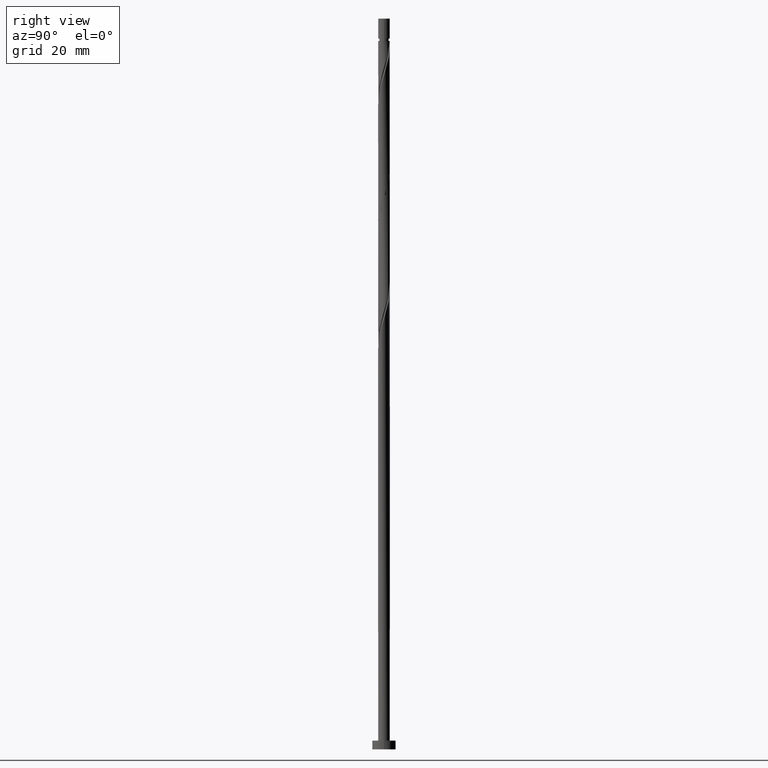
[diagram: clean part render]
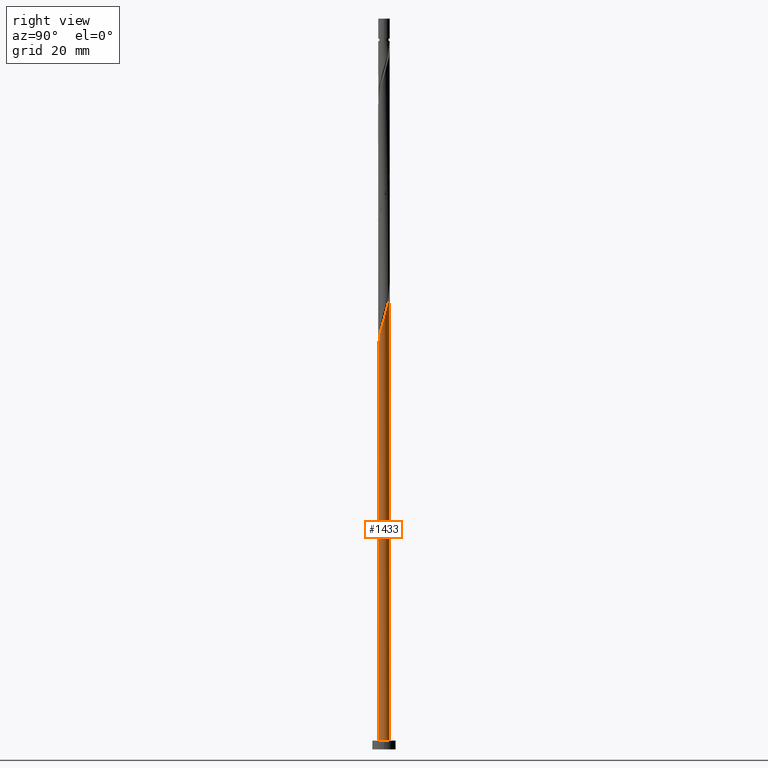
[diagram: same view with one face highlighted and labeled with its STEP entity id]
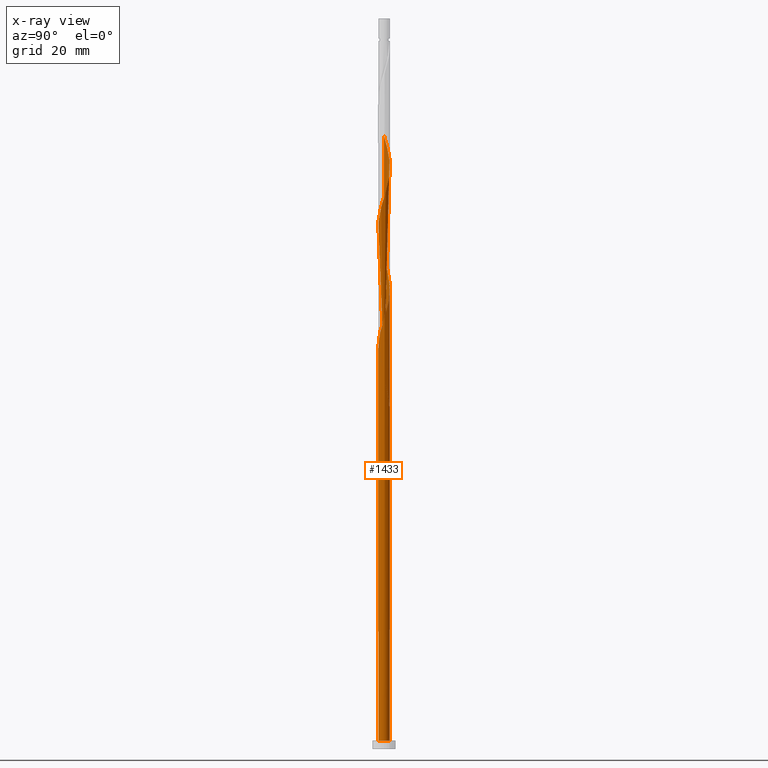
[diagram: x-ray of the same camera — body ghosted, the highlighted face saturated]
A machine part, right view. The second image highlights one B-rep face of the part: STEP entity #1433.
The next image is the same camera in x-ray: the body ghosted, the highlighted face saturated — about 0% of this face is hidden behind the body in this view.
In plain terms, the highlighted cylindrical surface (bore or boss wall) has radius 2 mm, axis along (-0, -0, -1).
Its self-contained STEP definition (entity closure, byte-faithful):
#8 = VECTOR ( 'NONE', #1645, 1000.000000000000000 ) ;
#22 = CARTESIAN_POINT ( 'NONE',  ( -1.211998413758896609, 1.609357958033087010, 122.9713910979736511 ) ) ;
#35 = CARTESIAN_POINT ( 'NONE',  ( -0.1600078877270179334, 2.008325339157891243, 199.8944680210505567 ) ) ;
#39 = CYLINDRICAL_SURFACE ( 'NONE', #643, 2.000000000000000000 ) ;
#49 = CARTESIAN_POINT ( 'NONE',  ( -1.821077233755968861, -0.8617719540192931849, 171.0483141748967171 ) ) ;
#50 = CARTESIAN_POINT ( 'NONE',  ( -2.000000000000003109, -5.234578486650210785E-17, 209.7844948631074260 ) ) ;
#51 = CARTESIAN_POINT ( 'NONE',  ( -0.6359820619582811085, 1.911674660842114903, 201.4970321236147868 ) ) ;
#60 = CARTESIAN_POINT ( 'NONE',  ( 1.743714191808986458, -1.009174915127430738, 143.8047244313070507 ) ) ;
#62 = CARTESIAN_POINT ( 'NONE',  ( 2.012969205859303834, -0.08323561918244104518, 188.6765193031019123 ) ) ;
#71 = CARTESIAN_POINT ( 'NONE',  ( -1.263264465859909036, 1.550536323113937520, 162.2342116107941479 ) ) ;
#77 = CARTESIAN_POINT ( 'NONE',  ( -1.074995270449264018, 1.703924399892858155, 161.4329295595121039 ) ) ;
#104 = VERTEX_POINT ( 'NONE', #1189 ) ;
#111 = ORIENTED_EDGE ( 'NONE', *, *, #816, .T. ) ;
#113 = ORIENTED_EDGE ( 'NONE', *, *, #413, .F. ) ;
#130 = CARTESIAN_POINT ( 'NONE',  ( -0.5584503685516643001, 1.920451297446647221, 120.5675449441274765 ) ) ;
#153 = CARTESIAN_POINT ( 'NONE',  ( -1.897736400206355256, -0.6313450366731635510, 128.5803654569480159 ) ) ;
#159 = FACE_OUTER_BOUND ( 'NONE', #1316, .T. ) ;
#162 = CARTESIAN_POINT ( 'NONE',  ( 1.973762798760990034, -0.3228938126183206192, 187.8752372518197546 ) ) ;
#172 = CARTESIAN_POINT ( 'NONE',  ( 1.743714191808986458, -1.009174915127430738, 185.4713910979737079 ) ) ;
#178 = CARTESIAN_POINT ( 'NONE',  ( -1.993682386258022188, -0.1588412500722965470, 168.6444680210505567 ) ) ;
#180 = CARTESIAN_POINT ( 'NONE',  ( 0.3979949748426497291, -1.960000000000002629, 179.8624167389992579 ) ) ;
#181 = CARTESIAN_POINT ( 'NONE',  ( 0.000000000000000000, 0.000000000000000000, 3.000000000000000000 ) ) ;
#187 = CARTESIAN_POINT ( 'NONE',  ( 1.974395566656741430, 0.4009181193270345833, 148.6124167389993715 ) ) ;
#188 = CARTESIAN_POINT ( 'NONE',  ( 0.000000000000000000, 0.000000000000000000, 3.000000000000000000 ) ) ;
#189 = CARTESIAN_POINT ( 'NONE',  ( -0.3979949748426495626, 1.960000000000002629, 200.6957500723326007 ) ) ;
#196 = CARTESIAN_POINT ( 'NONE',  ( 1.263264465859909036, -1.550536323113937520, 141.4008782774607766 ) ) ;
#205 = CARTESIAN_POINT ( 'NONE',  ( -1.001816893764150285, -1.731000552099496215, 133.3880577646402799 ) ) ;
#213 = DIRECTION ( 'NONE',  ( -1.000000000000000000, 0.000000000000000000, 0.000000000000000000 ) ) ;
#220 = EDGE_CURVE ( 'NONE', #104, #1048, #1258, .T. ) ;
#257 = CARTESIAN_POINT ( 'NONE',  ( -1.897736400206351481, 0.6313450366731636620, 126.9778013543839137 ) ) ;
#272 = CARTESIAN_POINT ( 'NONE',  ( -2.000000000000003109, -1.921838101527291543E-15, 126.4511615297741116 ) ) ;
#291 = CARTESIAN_POINT ( 'NONE',  ( 0.7916353737694016290, 1.852643146165904975, 196.6893398159224091 ) ) ;
#292 = DIRECTION ( 'NONE',  ( 1.000000000000000000, 0.000000000000000000, 0.000000000000000000 ) ) ;
#299 = CARTESIAN_POINT ( 'NONE',  ( 0.3252653633339306904, 1.988259448727395462, 198.2919039184865255 ) ) ;
#306 = CARTESIAN_POINT ( 'NONE',  ( 0.6359820619582808865, -1.911674660842115347, 138.9970321236147015 ) ) ;
#308 = CARTESIAN_POINT ( 'NONE',  ( -1.597623926539770700, 1.203161580731223923, 205.5034423800249215 ) ) ;
#317 = CARTESIAN_POINT ( 'NONE',  ( -0.1600078877270179334, 2.008325339157891243, 158.2278013543839279 ) ) ;
#319 = CARTESIAN_POINT ( 'NONE',  ( -0.08262873780345621200, -1.998292393942642908, 178.2598526364351414 ) ) ;
#326 = CARTESIAN_POINT ( 'NONE',  ( 1.691500872565840918, 1.067157344588421708, 151.0162628928454467 ) ) ;
#328 = EDGE_CURVE ( 'NONE', #646, #511, #1642, .T. ) ;
#334 = CARTESIAN_POINT ( 'NONE',  ( -0.3979949748426494516, 1.960000000000002629, 117.3624167389992721 ) ) ;
#335 = CARTESIAN_POINT ( 'NONE',  ( 1.211998413758900384, 1.609357958033088343, 153.4201090466915787 ) ) ;
#340 = CARTESIAN_POINT ( 'NONE',  ( -2.000000000000003109, 0.1625128770740885409, 125.9114607924257712 ) ) ;
#359 = AXIS2_PLACEMENT_3D ( 'NONE', #1412, #1155, #497 ) ;
#396 = CARTESIAN_POINT ( 'NONE',  ( 0.1600078877270190436, 2.008325339157888134, 118.1636987902813303 ) ) ;
#411 = CARTESIAN_POINT ( 'NONE',  ( -1.993682386258019523, 0.1588412500722972409, 128.5803654569480159 ) ) ;
#413 = EDGE_CURVE ( 'NONE', #511, #104, #1377, .T. ) ;
#422 = CARTESIAN_POINT ( 'NONE',  ( -1.451533661270556053, 1.397148246335017996, 204.7021603287429059 ) ) ;
#430 = CARTESIAN_POINT ( 'NONE',  ( 0.08262873780345734998, 1.998292393942642908, 199.0931859697684843 ) ) ;
#436 = CARTESIAN_POINT ( 'NONE',  ( -2.012969205859303834, 0.08323561918244121172, 167.8431859697685127 ) ) ;
#438 = CARTESIAN_POINT ( 'NONE',  ( 1.839135291735831457, -0.7858634605908146886, 186.2726731492556951 ) ) ;
#445 = CARTESIAN_POINT ( 'NONE',  ( -1.386961462567306347, -1.440950346595318843, 173.4521603287428775 ) ) ;
#446 = DIRECTION ( 'NONE',  ( 1.000000000000000000, 0.000000000000000000, 0.000000000000000000 ) ) ;
#447 = CARTESIAN_POINT ( 'NONE',  ( -1.074995270449264018, 1.703924399892858155, 203.0995962261787895 ) ) ;
#457 = CARTESIAN_POINT ( 'NONE',  ( -0.3252653633339305239, -1.988259448727395462, 135.7919039184864687 ) ) ;
#464 = CARTESIAN_POINT ( 'NONE',  ( 1.074995270449263352, -1.703924399892858377, 140.5995962261787895 ) ) ;
#469 = CARTESIAN_POINT ( 'NONE',  ( -1.597623926539770700, 1.203161580731223923, 122.1701090466916071 ) ) ;
#470 = CARTESIAN_POINT ( 'NONE',  ( -1.691500872565841140, -1.067157344588421486, 130.1829295595121039 ) ) ;
#477 = CARTESIAN_POINT ( 'NONE',  ( -1.973762798760990034, 0.3228938126183202861, 125.3752372518197831 ) ) ;
#487 = VERTEX_POINT ( 'NONE', #1231 ) ;
#497 = DIRECTION ( 'NONE',  ( 0.000000000000000000, 1.000000000000000000, -5.551115123125782702E-14 ) ) ;
#508 =( BOUNDED_CURVE ( )  B_SPLINE_CURVE ( 2, ( #334, #1393, #1661, #866, #1410, #1135, #469, #1006, #1145, #1529, #477, #340, #1129 ),
 .UNSPECIFIED., .F., .F. ) 
 B_SPLINE_CURVE_WITH_KNOTS ( ( 3, 2, 2, 2, 2, 2, 3 ),
 ( 0.000000000000000000, 0.009615384615384581224, 0.01923076923076927347, 0.02884615384615385469, 0.03846153846153843592, 0.04807692307692312816, 0.05452716259738338983 ),
 .UNSPECIFIED. ) 
 CURVE ( )  GEOMETRIC_REPRESENTATION_ITEM ( )  RATIONAL_B_SPLINE_CURVE ( ( 0.9090909090909508050, 0.9024626128164540129, 0.9090909090909508050, 0.9024626128164540129, 0.9090909090909508050, 0.9024626128164540129, 0.9090909090909508050, 0.9024626128164540129, 0.9090909090909508050, 0.9024626128164540129, 0.9090909090909508050, 0.9046444828383105596, 0.9061636035683054979 ) ) 
 REPRESENTATION_ITEM ( '' )  );
#511 = VERTEX_POINT ( 'NONE', #50 ) ;
#521 = CARTESIAN_POINT ( 'NONE',  ( -0.08262873780345499075, 1.998292393942640688, 118.9649808415633885 ) ) ;
#529 = EDGE_CURVE ( 'NONE', #487, #638, #538, .T. ) ;
#538 = CIRCLE ( 'NONE', #1509, 2.000000000000000000 ) ;
#550 = CARTESIAN_POINT ( 'NONE',  ( -0.5584503685516657434, -1.920451297446650329, 176.6572885338711103 ) ) ;
#558 = CARTESIAN_POINT ( 'NONE',  ( -2.000000000000000000, 0.000000000000000000, 250.0000000000000000 ) ) ;
#559 = CARTESIAN_POINT ( 'NONE',  ( -2.000000000000003997, 0.1625128770740845718, 209.2447941257591424 ) ) ;
#565 = CARTESIAN_POINT ( 'NONE',  ( 0.000000000000000000, 0.000000000000000000, 250.0000000000000000 ) ) ;
#566 = CARTESIAN_POINT ( 'NONE',  ( 1.973762798760990034, -0.3228938126183206192, 146.2085705851531259 ) ) ;
#568 = CARTESIAN_POINT ( 'NONE',  ( -0.7916353737694011850, -1.852643146165904975, 175.8560064825890379 ) ) ;
#574 = CARTESIAN_POINT ( 'NONE',  ( -1.743714191808986680, 1.009174915127430294, 164.6380577646403651 ) ) ;
#584 = LINE ( 'NONE', #1119, #8 ) ;
#585 = CARTESIAN_POINT ( 'NONE',  ( 0.3252653633339306904, 1.988259448727395462, 156.6252372518197546 ) ) ;
#595 = CARTESIAN_POINT ( 'NONE',  ( -0.7916353737694011850, -1.852643146165904975, 134.1893398159223807 ) ) ;
#601 = CARTESIAN_POINT ( 'NONE',  ( 0.08262873780345734998, 1.998292393942642908, 157.4265193031018839 ) ) ;
#638 = VERTEX_POINT ( 'NONE', #1683 ) ;
#643 = AXIS2_PLACEMENT_3D ( 'NONE', #565, #1098, #213 ) ;
#646 = VERTEX_POINT ( 'NONE', #734 ) ;
#676 = CARTESIAN_POINT ( 'NONE',  ( -1.999999999999999556, 0.07954626067354128582, 128.8428343659248583 ) ) ;
#679 = CARTESIAN_POINT ( 'NONE',  ( 1.263264465859909036, -1.550536323113937520, 183.0675449441274623 ) ) ;
#688 = CARTESIAN_POINT ( 'NONE',  ( 1.993682386258022632, 0.1588412500722958531, 189.4778013543838995 ) ) ;
#696 = CARTESIAN_POINT ( 'NONE',  ( -1.743714191808986680, 1.009174915127430294, 206.3047244313070507 ) ) ;
#703 = CARTESIAN_POINT ( 'NONE',  ( -1.974395566656741430, -0.4009181193270349164, 169.4457500723326575 ) ) ;
#705 = CARTESIAN_POINT ( 'NONE',  ( 1.074995270449263352, -1.703924399892858377, 182.2662628928454467 ) ) ;
#707 = DIRECTION ( 'NONE',  ( 0.000000000000000000, 0.000000000000000000, 1.000000000000000000 ) ) ;
#713 = CARTESIAN_POINT ( 'NONE',  ( -1.386961462567306347, -1.440950346595318843, 131.7854936620761634 ) ) ;
#715 = CARTESIAN_POINT ( 'NONE',  ( -0.8554886662037721745, 1.807799530367486307, 202.2983141748967171 ) ) ;
#725 = CARTESIAN_POINT ( 'NONE',  ( 1.561924511375714308, 1.272542735157548677, 151.8175449441274623 ) ) ;
#732 = CARTESIAN_POINT ( 'NONE',  ( -0.8554886662037721745, 1.807799530367486307, 160.6316475082300315 ) ) ;
#734 = CARTESIAN_POINT ( 'NONE',  ( -2.000000000000003109, -1.921838101527291543E-15, 126.4511615297740974 ) ) ;
#770 = ORIENTED_EDGE ( 'NONE', *, *, #1483, .F. ) ;
#789 = CARTESIAN_POINT ( 'NONE',  ( -1.386961462567303904, 1.440950346595317955, 123.7726731492556809 ) ) ;
#795 = CARTESIAN_POINT ( 'NONE',  ( -0.7916353737693995196, 1.852643146165902310, 121.3688269954095489 ) ) ;
#803 = CARTESIAN_POINT ( 'NONE',  ( -1.974395566656741430, -0.4009181193270349164, 127.7790834056660145 ) ) ;
#811 = CARTESIAN_POINT ( 'NONE',  ( -2.000000000000003109, -0.07954626067353939844, 126.7153324454070571 ) ) ;
#816 = EDGE_CURVE ( 'NONE', #1033, #1048, #1138, .T. ) ;
#822 = CARTESIAN_POINT ( 'NONE',  ( -1.973762798760990034, 0.3228938126183202861, 208.7085705851530975 ) ) ;
#830 = DIRECTION ( 'NONE',  ( 0.000000000000000000, 0.000000000000000000, 1.000000000000000000 ) ) ;
#831 = CARTESIAN_POINT ( 'NONE',  ( 1.211998413758900384, 1.609357958033088343, 195.0867757133582927 ) ) ;
#838 = CARTESIAN_POINT ( 'NONE',  ( -0.6359820619582811085, 1.911674660842114903, 159.8303654569480443 ) ) ;
#845 = VECTOR ( 'NONE', #1487, 1000.000000000000000 ) ;
#848 = CARTESIAN_POINT ( 'NONE',  ( 1.934556391662676900, -0.5625520060542003042, 145.4072885338711103 ) ) ;
#850 = CARTESIAN_POINT ( 'NONE',  ( -1.839135291735831457, 0.7858634605908146886, 207.1060064825890379 ) ) ;
#858 = CARTESIAN_POINT ( 'NONE',  ( 1.993682386258022632, 0.1588412500722958531, 147.8111346877171854 ) ) ;
#865 = AXIS2_PLACEMENT_3D ( 'NONE', #181, #707, #292 ) ;
#866 = CARTESIAN_POINT ( 'NONE',  ( -1.074995270449264018, 1.703924399892858155, 119.7662628928454467 ) ) ;
#867 = CARTESIAN_POINT ( 'NONE',  ( -0.08262873780345621200, -1.998292393942642908, 136.5931859697684558 ) ) ;
#896 = ORIENTED_EDGE ( 'NONE', *, *, #529, .T. ) ;
#973 = CARTESIAN_POINT ( 'NONE',  ( -1.561924511375713642, -1.272542735157549787, 130.9842116107941763 ) ) ;
#975 = CARTESIAN_POINT ( 'NONE',  ( 1.691500872565840918, 1.067157344588421708, 192.6829295595120755 ) ) ;
#984 = CARTESIAN_POINT ( 'NONE',  ( -1.897736400206355256, -0.6313450366731635510, 170.2470321236146447 ) ) ;
#986 = CARTESIAN_POINT ( 'NONE',  ( -1.934556391662677566, 0.5625520060541993050, 207.9072885338710819 ) ) ;
#993 = CARTESIAN_POINT ( 'NONE',  ( 0.3979949748426497291, -1.960000000000002629, 138.1957500723326007 ) ) ;
#999 = CARTESIAN_POINT ( 'NONE',  ( 1.001816893764150951, 1.731000552099496215, 154.2213910979736511 ) ) ;
#1006 = CARTESIAN_POINT ( 'NONE',  ( -1.743714191808986680, 1.009174915127430294, 122.9713910979736653 ) ) ;
#1033 = VERTEX_POINT ( 'NONE', #1584 ) ;
#1048 = VERTEX_POINT ( 'NONE', #1067 ) ;
#1051 = CARTESIAN_POINT ( 'NONE',  ( -1.974395566656737877, 0.4009181193270346388, 127.7790834056659861 ) ) ;
#1065 = CARTESIAN_POINT ( 'NONE',  ( -1.821077233755965530, 0.8617719540192920746, 126.1765193031018697 ) ) ;
#1067 = CARTESIAN_POINT ( 'NONE',  ( 0.3979949748426501177, 1.959999999999999520, 117.3624167389992721 ) ) ;
#1084 = CARTESIAN_POINT ( 'NONE',  ( 1.386961462567306569, 1.440950346595318843, 194.2854936620761634 ) ) ;
#1092 = CARTESIAN_POINT ( 'NONE',  ( 0.1600078877270181554, -2.008325339157891243, 179.0611346877172423 ) ) ;
#1098 = DIRECTION ( 'NONE',  ( -0.000000000000000000, -0.000000000000000000, -1.000000000000000000 ) ) ;
#1099 = CARTESIAN_POINT ( 'NONE',  ( -1.451533661270556053, 1.397148246335017996, 163.0354936620761919 ) ) ;
#1101 = CARTESIAN_POINT ( 'NONE',  ( 1.597623926539770256, -1.203161580731224145, 184.6701090466915502 ) ) ;
#1109 = CARTESIAN_POINT ( 'NONE',  ( -1.691500872565841140, -1.067157344588421486, 171.8495962261787326 ) ) ;
#1119 = CARTESIAN_POINT ( 'NONE',  ( -2.000000000000000000, 0.000000000000000000, 250.0000000000000000 ) ) ;
#1120 = CARTESIAN_POINT ( 'NONE',  ( -1.973762798760990034, 0.3228938126183202861, 167.0419039184864687 ) ) ;
#1129 = CARTESIAN_POINT ( 'NONE',  ( -2.000000000000003109, -1.921838101527291543E-15, 126.4511615297741116 ) ) ;
#1130 = CARTESIAN_POINT ( 'NONE',  ( 1.821077233755969083, 0.8617719540192924077, 150.2149808415633458 ) ) ;
#1135 = CARTESIAN_POINT ( 'NONE',  ( -1.451533661270556053, 1.397148246335017996, 121.3688269954095631 ) ) ;
#1136 = CARTESIAN_POINT ( 'NONE',  ( -1.211998413758899718, -1.609357958033089009, 132.5867757133582927 ) ) ;
#1138 = CIRCLE ( 'NONE', #359, 2.000000000000000000 ) ;
#1145 = CARTESIAN_POINT ( 'NONE',  ( -1.839135291735831457, 0.7858634605908146886, 123.7726731492556667 ) ) ;
#1155 = DIRECTION ( 'NONE',  ( 0.000000000000000000, -5.204170427930423177E-14, -1.000000000000000000 ) ) ;
#1164 = ORIENTED_EDGE ( 'NONE', *, *, #1255, .F. ) ;
#1189 = CARTESIAN_POINT ( 'NONE',  ( -2.000000000000000000, 2.669635028191625354E-15, 129.1070052815578322 ) ) ;
#1211 = CARTESIAN_POINT ( 'NONE',  ( 0.3979949748426501732, 1.959999999999999520, 117.3624167389992863 ) ) ;
#1216 = CARTESIAN_POINT ( 'NONE',  ( 0.5584503685516667426, 1.920451297446649663, 197.4906218672043394 ) ) ;
#1224 = CARTESIAN_POINT ( 'NONE',  ( 1.897736400206355922, 0.6313450366731626628, 191.0803654569480727 ) ) ;
#1231 = CARTESIAN_POINT ( 'NONE',  ( -2.000000000000000000, 0.000000000000000000, 3.000000000000000000 ) ) ;
#1238 = CARTESIAN_POINT ( 'NONE',  ( 1.386961462567306569, 1.440950346595318843, 152.6188269954095063 ) ) ;
#1240 = CARTESIAN_POINT ( 'NONE',  ( 1.934556391662676900, -0.5625520060542003042, 187.0739552005377675 ) ) ;
#1249 = CARTESIAN_POINT ( 'NONE',  ( 1.451533661270556053, -1.397148246335018440, 142.2021603287428491 ) ) ;
#1251 = CARTESIAN_POINT ( 'NONE',  ( 1.451533661270556053, -1.397148246335018440, 183.8688269954095915 ) ) ;
#1255 = EDGE_CURVE ( 'NONE', #646, #487, #584, .T. ) ;
#1258 =( BOUNDED_CURVE ( )  B_SPLINE_CURVE ( 2, ( #1333, #676, #411, #1051, #257, #1065, #1590, #1318, #789, #22, #1598, #795, #130, #1719, #521, #396, #1211 ),
 .UNSPECIFIED., .F., .F. ) 
 B_SPLINE_CURVE_WITH_KNOTS ( ( 3, 2, 2, 2, 2, 2, 2, 2, 3 ),
 ( 0.9295271625973834384, 0.9326923076923077094, 0.9423076923076922906, 0.9519230769230768718, 0.9615384615384615641, 0.9711538461538461453, 0.9807692307692307265, 0.9903846153846154188, 1.000000000000000000 ),
 .UNSPECIFIED. ) 
 CURVE ( )  GEOMETRIC_REPRESENTATION_ITEM ( )  RATIONAL_B_SPLINE_CURVE ( ( 0.9061636035682997248, 0.9069090390690883741, 0.9090909090909448098, 0.9024626128164481287, 0.9090909090909448098, 0.9024626128164481287, 0.9090909090909448098, 0.9024626128164481287, 0.9090909090909448098, 0.9024626128164481287, 0.9090909090909448098, 0.9024626128164481287, 0.9090909090909448098, 0.9024626128164481287, 0.9090909090909448098, 0.9024626128164481287, 0.9090909090909448098 ) ) 
 REPRESENTATION_ITEM ( '' )  );
#1262 = CARTESIAN_POINT ( 'NONE',  ( 1.897736400206355922, 0.6313450366731626628, 149.4136987902813587 ) ) ;
#1268 = CARTESIAN_POINT ( 'NONE',  ( 0.5584503685516667426, 1.920451297446649663, 155.8239552005377391 ) ) ;
#1316 = EDGE_LOOP ( 'NONE', ( #113, #1403, #1547, #896, #1354, #1164, #770, #111, #1492 ) ) ;
#1318 = CARTESIAN_POINT ( 'NONE',  ( -1.561924511375710978, 1.272542735157548233, 124.5739552005377533 ) ) ;
#1333 = CARTESIAN_POINT ( 'NONE',  ( -2.000000000000000000, 2.669635028191625354E-15, 129.1070052815578322 ) ) ;
#1341 = CARTESIAN_POINT ( 'NONE',  ( -1.993682386258022188, -0.1588412500722965470, 126.9778013543839137 ) ) ;
#1350 = CARTESIAN_POINT ( 'NONE',  ( -1.001816893764150285, -1.731000552099496215, 175.0547244313069370 ) ) ;
#1354 = ORIENTED_EDGE ( 'NONE', *, *, #1664, .T. ) ;
#1359 = CARTESIAN_POINT ( 'NONE',  ( -0.3252653633339305239, -1.988259448727395462, 177.4585705851531543 ) ) ;
#1366 = CARTESIAN_POINT ( 'NONE',  ( -1.839135291735831457, 0.7858634605908146886, 165.4393398159223239 ) ) ;
#1368 = CARTESIAN_POINT ( 'NONE',  ( 1.821077233755969083, 0.8617719540192924077, 191.8816475082300883 ) ) ;
#1376 = CARTESIAN_POINT ( 'NONE',  ( 0.1600078877270181554, -2.008325339157891243, 137.3944680210505283 ) ) ;
#1377 = LINE ( 'NONE', #558, #845 ) ;
#1378 = CARTESIAN_POINT ( 'NONE',  ( 0.8554886662037717304, -1.807799530367486529, 181.4649808415633743 ) ) ;
#1386 = CARTESIAN_POINT ( 'NONE',  ( 0.7916353737694016290, 1.852643146165904975, 155.0226731492557235 ) ) ;
#1393 = CARTESIAN_POINT ( 'NONE',  ( -0.6359820619582811085, 1.911674660842114903, 118.1636987902813445 ) ) ;
#1394 = CARTESIAN_POINT ( 'NONE',  ( -0.3979949748426495626, 1.960000000000002629, 159.0290834056659435 ) ) ;
#1403 = ORIENTED_EDGE ( 'NONE', *, *, #328, .F. ) ;
#1410 = CARTESIAN_POINT ( 'NONE',  ( -1.263264465859909036, 1.550536323113937520, 120.5675449441274623 ) ) ;
#1412 = CARTESIAN_POINT ( 'NONE',  ( 0.000000000000000000, 0.000000000000000000, 117.3624167389993858 ) ) ;
#1433 = ADVANCED_FACE ( 'NONE', ( #159 ), #39, .T. ) ;
#1479 = CARTESIAN_POINT ( 'NONE',  ( -1.211998413758899718, -1.609357958033089009, 174.2534423800249783 ) ) ;
#1483 = EDGE_CURVE ( 'NONE', #1033, #646, #508, .T. ) ;
#1487 = DIRECTION ( 'NONE',  ( -0.000000000000000000, -0.000000000000000000, -1.000000000000000000 ) ) ;
#1492 = ORIENTED_EDGE ( 'NONE', *, *, #220, .F. ) ;
#1495 = CARTESIAN_POINT ( 'NONE',  ( 1.597623926539770256, -1.203161580731224145, 143.0034423800249499 ) ) ;
#1497 = CARTESIAN_POINT ( 'NONE',  ( 1.561924511375714308, 1.272542735157548677, 193.4842116107942047 ) ) ;
#1506 = CARTESIAN_POINT ( 'NONE',  ( 2.012969205859303834, -0.08323561918244104518, 147.0098526364351983 ) ) ;
#1508 = CARTESIAN_POINT ( 'NONE',  ( -2.000000000000003109, -5.234578486650210785E-17, 209.7844948631074260 ) ) ;
#1509 = AXIS2_PLACEMENT_3D ( 'NONE', #188, #830, #446 ) ;
#1516 = CARTESIAN_POINT ( 'NONE',  ( -1.597623926539770700, 1.203161580731223923, 163.8367757133582359 ) ) ;
#1523 = CARTESIAN_POINT ( 'NONE',  ( 0.8554886662037717304, -1.807799530367486529, 139.7983141748967171 ) ) ;
#1529 = CARTESIAN_POINT ( 'NONE',  ( -1.934556391662677566, 0.5625520060541993050, 124.5739552005377533 ) ) ;
#1547 = ORIENTED_EDGE ( 'NONE', *, *, #1255, .T. ) ;
#1584 = CARTESIAN_POINT ( 'NONE',  ( -0.3979949748426494516, 1.960000000000002629, 117.3624167389992721 ) ) ;
#1590 = CARTESIAN_POINT ( 'NONE',  ( -1.691500872565838032, 1.067157344588420598, 125.3752372518197689 ) ) ;
#1598 = CARTESIAN_POINT ( 'NONE',  ( -1.001816893764148064, 1.731000552099494438, 122.1701090466915787 ) ) ;
#1610 = CARTESIAN_POINT ( 'NONE',  ( -1.263264465859909036, 1.550536323113937520, 203.9008782774607766 ) ) ;
#1618 = CARTESIAN_POINT ( 'NONE',  ( 1.974395566656741430, 0.4009181193270345833, 190.2790834056660003 ) ) ;
#1624 = CARTESIAN_POINT ( 'NONE',  ( 1.839135291735831457, -0.7858634605908146886, 144.6060064825890663 ) ) ;
#1626 = CARTESIAN_POINT ( 'NONE',  ( 0.6359820619582808865, -1.911674660842115347, 180.6636987902813587 ) ) ;
#1634 = CARTESIAN_POINT ( 'NONE',  ( -1.561924511375713642, -1.272542735157549787, 172.6508782774608051 ) ) ;
#1636 = CARTESIAN_POINT ( 'NONE',  ( 1.001816893764150951, 1.731000552099496215, 195.8880577646402799 ) ) ;
#1642 =( BOUNDED_CURVE ( )  B_SPLINE_CURVE ( 2, ( #272, #811, #1341, #803, #153, #1655, #470, #973, #713, #1136, #205, #595, #1662, #457, #867, #1376, #993, #306, #1523, #464, #196, #1249, #1495, #60, #1624, #848, #566, #1506, #858, #187, #1262, #1130, #326, #725, #1238, #335, #999, #1386, #1268, #585, #601, #317, #1394, #838, #732, #77, #71, #1099, #1516, #574, #1366, #1646, #1120, #436, #178, #703, #984, #49, #1109, #1634, #445, #1479, #1350, #568, #550, #1359, #319, #1092, #180, #1626, #1378, #705, #679, #1251, #1101, #172, #438, #1240, #162, #62, #688, #1618, #1224, #1368, #975, #1497, #1084, #831, #1636, #291, #1216, #299, #430, #35, #189, #51, #715, #447, #1610, #422, #308, #696, #850, #986, #822, #559, #1508 ),
 .UNSPECIFIED., .F., .T. ) 
 B_SPLINE_CURVE_WITH_KNOTS ( ( 3, 2, 2, 2, 2, 2, 2, 2, 2, 2, 2, 2, 2, 2, 2, 2, 2, 2, 2, 2, 2, 2, 2, 2, 2, 2, 2, 2, 2, 2, 2, 2, 2, 2, 2, 2, 2, 2, 2, 2, 2, 2, 2, 2, 2, 2, 2, 2, 2, 2, 2, 2, 2, 3 ),
 ( 0.05452716259738338983, 0.05769230769230770939, 0.06730769230769229061, 0.07692307692307687184, 0.08653846153846156408, 0.09615384615384614531, 0.1057692307692307265, 0.1153846153846154188, 0.1250000000000000000, 0.1346153846153845812, 0.1442307692307692735, 0.1538461538461538547, 0.1634615384615384359, 0.1730769230769231282, 0.1826923076923077094, 0.1923076923076922906, 0.2019230769230768718, 0.2115384615384615641, 0.2211538461538461453, 0.2307692307692307265, 0.2403846153846154188, 0.2500000000000000000, 0.2596153846153845812, 0.2692307692307692735, 0.2788461538461538547, 0.2884615384615384359, 0.2980769230769231282, 0.3076923076923077094, 0.3173076923076922906, 0.3269230769230768718, 0.3365384615384615641, 0.3461538461538461453, 0.3557692307692307265, 0.3653846153846154188, 0.3750000000000000000, 0.3846153846153845812, 0.3942307692307692735, 0.4038461538461538547, 0.4134615384615384359, 0.4230769230769231282, 0.4326923076923077094, 0.4423076923076922906, 0.4519230769230768718, 0.4615384615384615641, 0.4711538461538461453, 0.4807692307692307265, 0.4903846153846154188, 0.5000000000000000000, 0.5096153846153845812, 0.5192307692307691624, 0.5288461538461538547, 0.5384615384615384359, 0.5480769230769231282, 0.5545271625973835494 ),
 .UNSPECIFIED. ) 
 CURVE ( )  GEOMETRIC_REPRESENTATION_ITEM ( )  RATIONAL_B_SPLINE_CURVE ( ( 0.9061636035683054979, 0.9069090390690942582, 0.9090909090909508050, 0.9024626128164540129, 0.9090909090909508050, 0.9024626128164540129, 0.9090909090909508050, 0.9024626128164540129, 0.9090909090909508050, 0.9024626128164540129, 0.9090909090909508050, 0.9024626128164540129, 0.9090909090909508050, 0.9024626128164540129, 0.9090909090909508050, 0.9024626128164540129, 0.9090909090909508050, 0.9024626128164540129, 0.9090909090909508050, 0.9024626128164540129, 0.9090909090909508050, 0.9024626128164540129, 0.9090909090909508050, 0.9024626128164540129, 0.9090909090909508050, 0.9024626128164540129, 0.9090909090909508050, 0.9024626128164540129, 0.9090909090909508050, 0.9024626128164540129, 0.9090909090909508050, 0.9024626128164540129, 0.9090909090909508050, 0.9024626128164540129, 0.9090909090909508050, 0.9024626128164540129, 0.9090909090909508050, 0.9024626128164540129, 0.9090909090909508050, 0.9024626128164540129, 0.9090909090909508050, 0.9024626128164540129, 0.9090909090909508050, 0.9024626128164540129, 0.9090909090909508050, 0.9024626128164540129, 0.9090909090909508050, 0.9024626128164540129, 0.9090909090909508050, 0.9024626128164540129, 0.9090909090909508050, 0.9024626128164540129, 0.9090909090909508050, 0.9024626128164540129, 0.9090909090909508050, 0.9024626128164540129, 0.9090909090909508050, 0.9024626128164540129, 0.9090909090909508050, 0.9024626128164540129, 0.9090909090909508050, 0.9024626128164540129, 0.9090909090909508050, 0.9024626128164540129, 0.9090909090909508050, 0.9024626128164540129, 0.9090909090909508050, 0.9024626128164540129, 0.9090909090909508050, 0.9024626128164540129, 0.9090909090909508050, 0.9024626128164540129, 0.9090909090909508050, 0.9024626128164540129, 0.9090909090909508050, 0.9024626128164540129, 0.9090909090909508050, 0.9024626128164540129, 0.9090909090909508050, 0.9024626128164540129, 0.9090909090909508050, 0.9024626128164540129, 0.9090909090909508050, 0.9024626128164540129, 0.9090909090909508050, 0.9024626128164540129, 0.9090909090909508050, 0.9024626128164540129, 0.9090909090909508050, 0.9024626128164540129, 0.9090909090909508050, 0.9024626128164540129, 0.9090909090909508050, 0.9024626128164540129, 0.9090909090909508050, 0.9024626128164540129, 0.9090909090909508050, 0.9024626128164540129, 0.9090909090909508050, 0.9024626128164540129, 0.9090909090909508050, 0.9024626128164540129, 0.9090909090909508050, 0.9024626128164540129, 0.9090909090909508050, 0.9046444828383104486, 0.9061636035683056090 ) ) 
 REPRESENTATION_ITEM ( '' )  );
#1645 = DIRECTION ( 'NONE',  ( -0.000000000000000000, -0.000000000000000000, -1.000000000000000000 ) ) ;
#1646 = CARTESIAN_POINT ( 'NONE',  ( -1.934556391662677566, 0.5625520060541993050, 166.2406218672043963 ) ) ;
#1655 = CARTESIAN_POINT ( 'NONE',  ( -1.821077233755968861, -0.8617719540192931849, 129.3816475082301167 ) ) ;
#1661 = CARTESIAN_POINT ( 'NONE',  ( -0.8554886662037721745, 1.807799530367486307, 118.9649808415633743 ) ) ;
#1662 = CARTESIAN_POINT ( 'NONE',  ( -0.5584503685516657434, -1.920451297446650329, 134.9906218672043963 ) ) ;
#1664 = EDGE_CURVE ( 'NONE', #638, #487, #1702, .T. ) ;
#1683 = CARTESIAN_POINT ( 'NONE',  ( 2.000000000000000000, 0.000000000000000000, 3.000000000000000000 ) ) ;
#1702 = CIRCLE ( 'NONE', #865, 2.000000000000000000 ) ;
#1719 = CARTESIAN_POINT ( 'NONE',  ( -0.3252653633339290806, 1.988259448727392131, 119.7662628928454183 ) ) ;